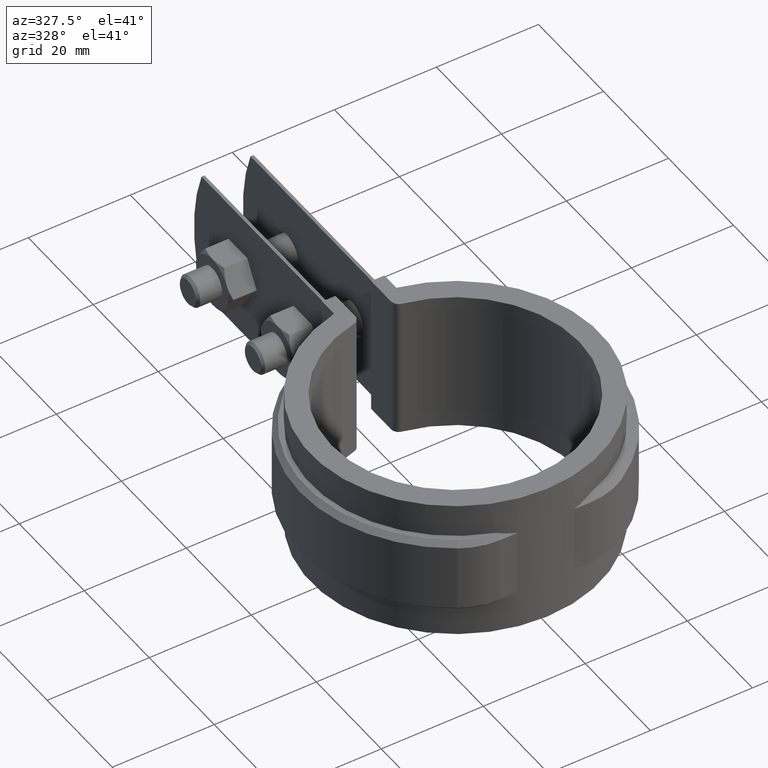
[diagram: clean part render]
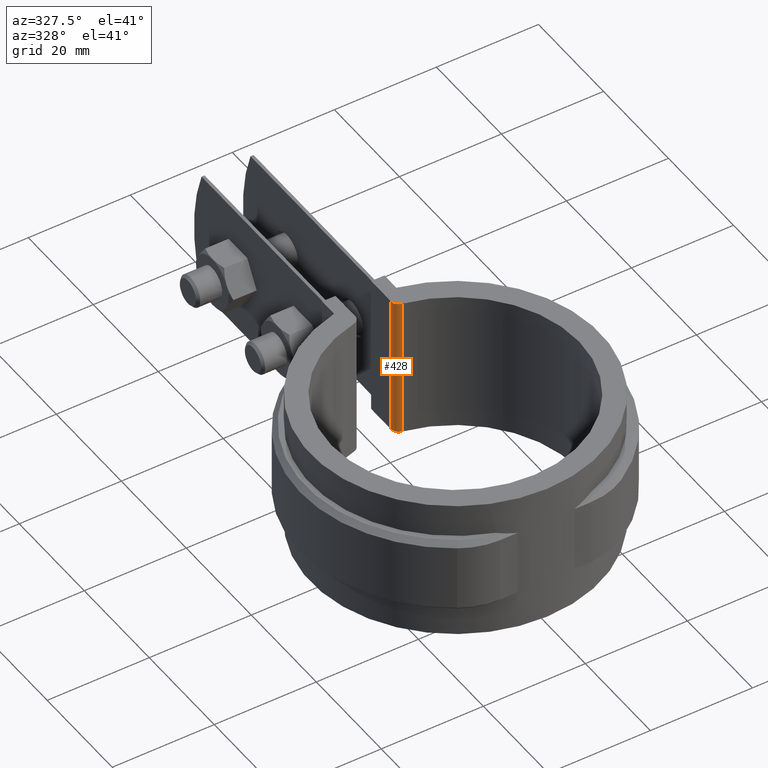
[diagram: same view with one face highlighted and labeled with its STEP entity id]
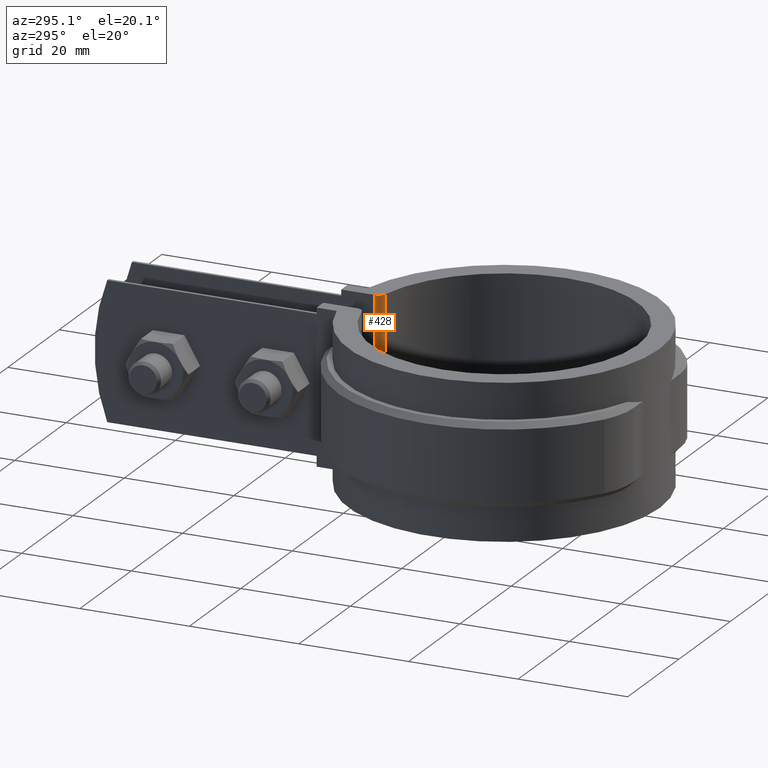
[diagram: same view with one face highlighted and labeled with its STEP entity id]
A machine part, auxiliary view. The second image highlights one B-rep face of the part: STEP entity #428.
A second angle (auxiliary view) of the same face is appended — the face is thin or edge-on in the first view.
In plain terms, the highlighted cylindrical surface (edge-blend (fillet) strip) has radius 1.5 mm, axis along (0, 0, -1).
Its self-contained STEP definition (entity closure, byte-faithful):
#428 = ADVANCED_FACE( '', ( #772 ), #773, .T. );
#772 = FACE_OUTER_BOUND( '', #1835, .T. );
#773 = CYLINDRICAL_SURFACE( '', #1836, 1.50000000000000 );
#1835 = EDGE_LOOP( '', ( #4319, #4320, #4321, #4322 ) );
#1836 = AXIS2_PLACEMENT_3D( '', #4323, #4324, #4325 );
#4319 = ORIENTED_EDGE( '', *, *, #5535, .F. );
#4320 = ORIENTED_EDGE( '', *, *, #5529, .F. );
#4321 = ORIENTED_EDGE( '', *, *, #5521, .F. );
#4322 = ORIENTED_EDGE( '', *, *, #5341, .F. );
#4323 = CARTESIAN_POINT( '', ( 5.00000000000000, 25.3108672312902, -96.6314213318892 ) );
#4324 = DIRECTION( '', ( 0.000000000000000, 0.000000000000000, -1.00000000000000 ) );
#4325 = DIRECTION( '', ( 1.00000000000000, 0.000000000000000, 0.000000000000000 ) );
#5341 = EDGE_CURVE( '', #6039, #6035, #6041, .T. );
#5521 = EDGE_CURVE( '', #6035, #6341, #6342, .F. );
#5529 = EDGE_CURVE( '', #6341, #6353, #6355, .F. );
#5535 = EDGE_CURVE( '', #6353, #6039, #6366, .T. );
#6035 = VERTEX_POINT( '', #7967 );
#6039 = VERTEX_POINT( '', #7973 );
#6041 = LINE( '', #7976, #7977 );
#6341 = VERTEX_POINT( '', #9746 );
#6342 = CIRCLE( '', #9747, 1.50000000000000 );
#6353 = VERTEX_POINT( '', #9761 );
#6355 = LINE( '', #9763, #9764 );
#6366 = CIRCLE( '', #9780, 1.50000000000000 );
#7967 = CARTESIAN_POINT( '', ( 3.50000000000000, 25.3108672312902, 1.50000000000000 ) );
#7973 = CARTESIAN_POINT( '', ( 3.50000000000000, 25.3108672312902, -26.5000000000000 ) );
#7976 = CARTESIAN_POINT( '', ( 3.50000000000000, 25.3108672312902, -26.5000000000000 ) );
#7977 = VECTOR( '', #10554, 1000.00000000000 );
#9746 = CARTESIAN_POINT( '', ( 4.70930232558140, 23.8393051829594, 1.50000000000000 ) );
#9747 = AXIS2_PLACEMENT_3D( '', #10693, #10694, #10695 );
#9761 = CARTESIAN_POINT( '', ( 4.70930232558140, 23.8393051829594, -26.5000000000000 ) );
#9763 = CARTESIAN_POINT( '', ( 4.70930232558140, 23.8393051829594, -96.6314213318892 ) );
#9764 = VECTOR( '', #10711, 1000.00000000000 );
#9780 = AXIS2_PLACEMENT_3D( '', #10720, #10721, #10722 );
#10554 = DIRECTION( '', ( 0.000000000000000, 0.000000000000000, 1.00000000000000 ) );
#10693 = CARTESIAN_POINT( '', ( 5.00000000000000, 25.3108672312902, 1.50000000000000 ) );
#10694 = DIRECTION( '', ( 0.000000000000000, 0.000000000000000, -1.00000000000000 ) );
#10695 = DIRECTION( '', ( -1.00000000000000, 0.000000000000000, 0.000000000000000 ) );
#10711 = DIRECTION( '', ( 0.000000000000000, 0.000000000000000, 1.00000000000000 ) );
#10720 = CARTESIAN_POINT( '', ( 5.00000000000000, 25.3108672312902, -26.5000000000000 ) );
#10721 = DIRECTION( '', ( 0.000000000000000, 0.000000000000000, -1.00000000000000 ) );
#10722 = DIRECTION( '', ( -1.00000000000000, 0.000000000000000, 0.000000000000000 ) );